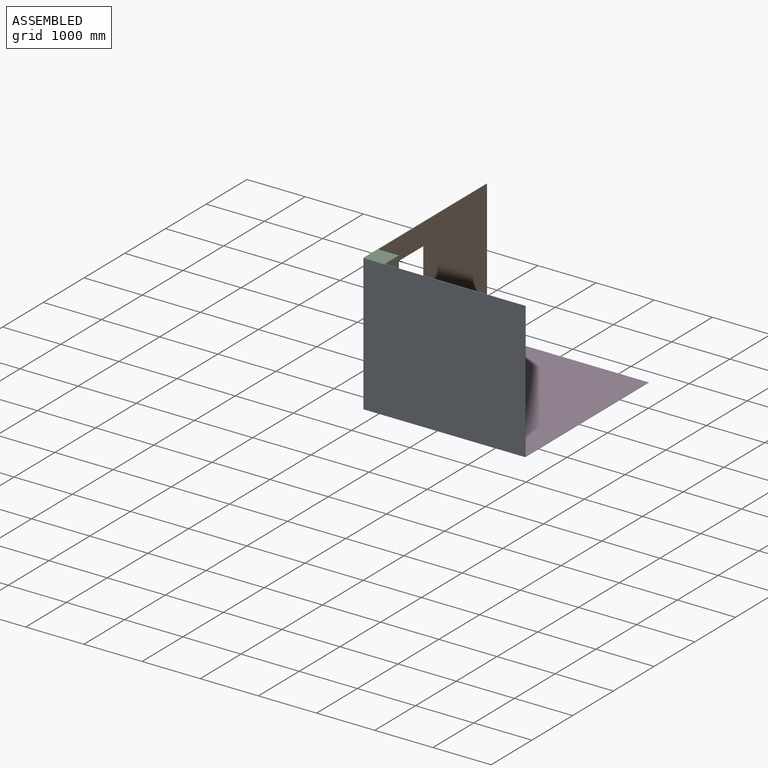
[diagram: assembled view]
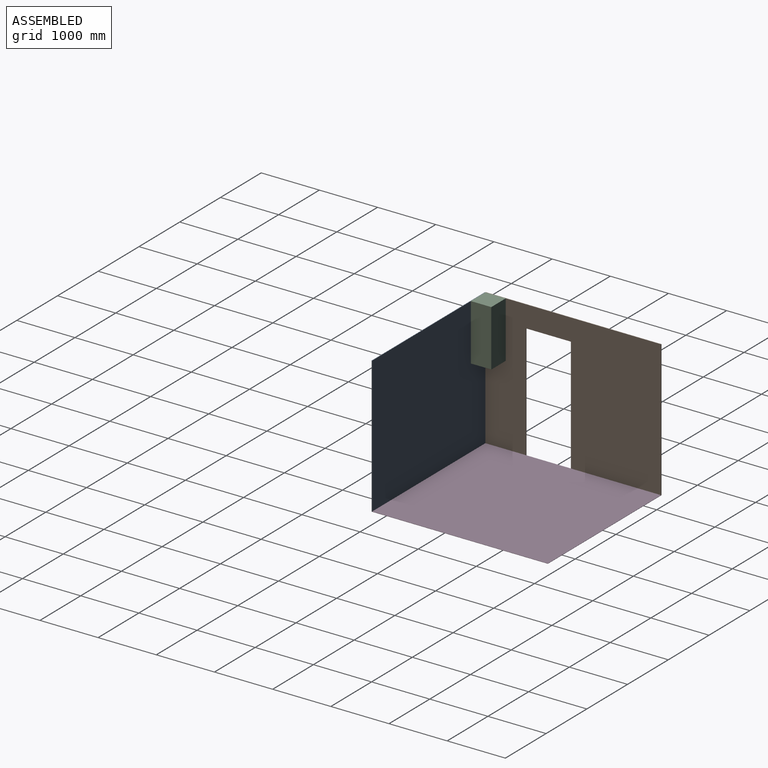
[diagram: assembled view, second angle]
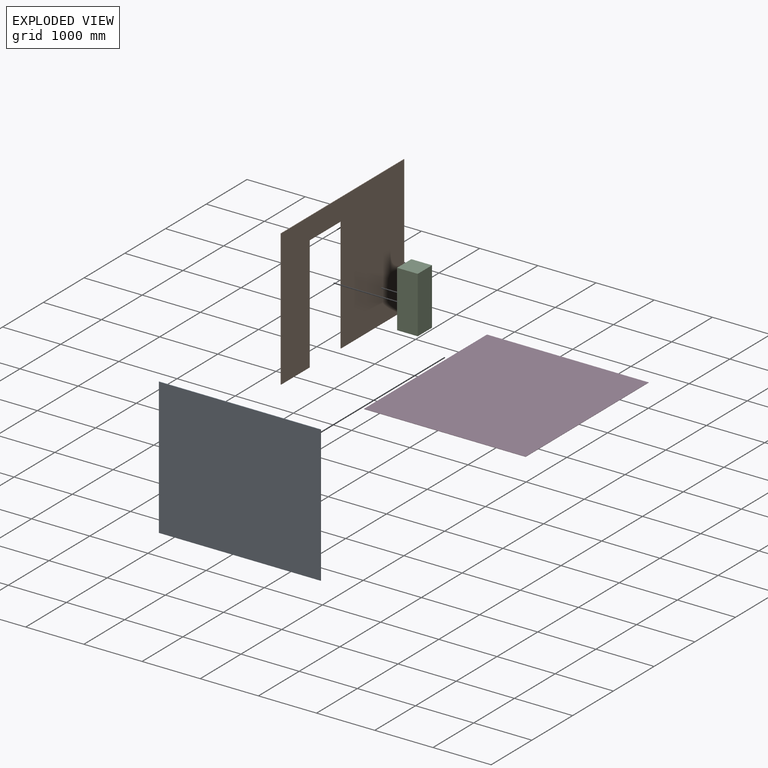
[diagram: exploded view]
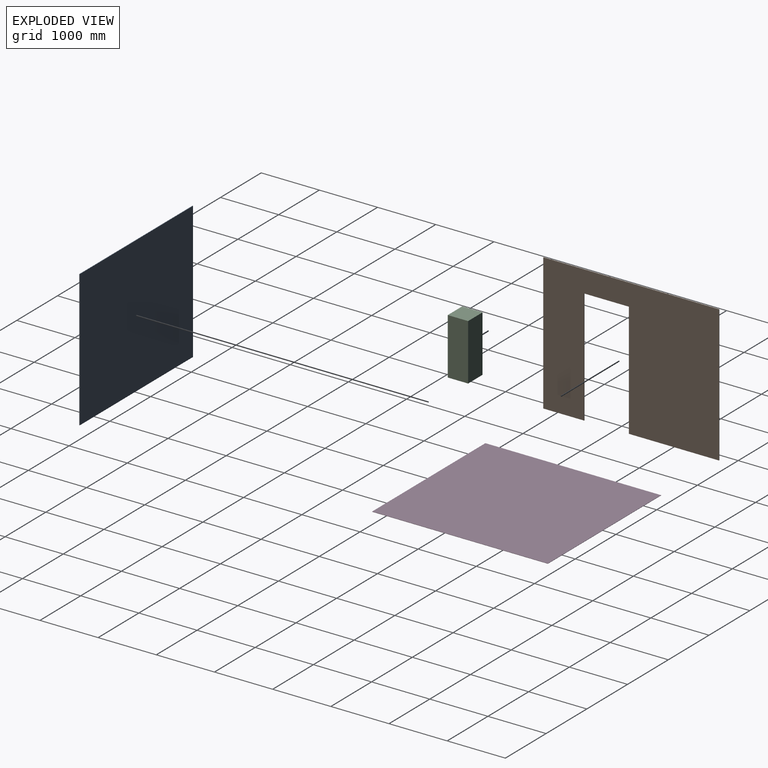
[diagram: exploded view, second angle]
ASSEMBLY  parts=4 mates=9
PART A: 6 faces, bbox 2779x10x2348 mm
  f0: plane 2348x10mm, normal (1,0,0), area 23480mm2, adj f1,f3,f4,f5
  f1: plane 2779x10mm, normal (0,0,1), area 27790mm2, adj f0,f2,f4,f5
  f2: plane 2348x10mm, normal (-1,0,0), area 23480mm2, adj f1,f3,f4,f5
  f3: plane 2779x10mm, normal (0,0,-1), area 27790mm2, adj f0,f2,f4,f5
  f4: plane 2779x2348mm, normal (0,-1,0), area 6525092mm2, adj f0,f1,f2,f3
  f5: plane 2779x2348mm, normal (0,1,0), area 6525092mm2, adj f0,f1,f2,f3
PART B: 10 faces, bbox 3020x10x2348 mm
  f0: plane 2348x10mm, normal (-1,0,0), area 23480mm2, adj f1,f7,f8,f9
  f1: plane 701x10mm, normal (0,0,-1), area 7010mm2, adj f0,f2,f8,f9
  f2: plane 1975x10mm, normal (1,0,0), area 19750mm2, adj f1,f3,f8,f9
  f3: plane 769x10mm, normal (0,0,-1), area 7690mm2, adj f2,f4,f8,f9
  f4: plane 1975x10mm, normal (-1,0,0), area 19750mm2, adj f3,f5,f8,f9
  f5: plane 1550x10mm, normal (0,0,-1), area 15500mm2, adj f4,f6,f8,f9
  f6: plane 2348x10mm, normal (1,0,0), area 23480mm2, adj f5,f7,f8,f9
  f7: plane 3020x10mm, normal (0,0,1), area 30200mm2, adj f0,f6,f8,f9
  f8: plane 3020x2348mm, normal (0,-1,0), area 5572185mm2, adj f0,f1,f2,f3,f4,f5,f6,f7
  f9: plane 3020x2348mm, normal (0,1,0), area 5572185mm2, adj f0,f1,f2,f3,f4,f5,f6,f7
PART C: 6 faces, bbox 355x350x970 mm
  f0: plane 970x355mm, normal (0,1,0), area 344350mm2, adj f1,f3,f4,f5
  f1: plane 970x350mm, normal (-1,0,0), area 339500mm2, adj f0,f2,f4,f5
  f2: plane 970x355mm, normal (0,-1,0), area 344350mm2, adj f1,f3,f4,f5
  f3: plane 970x350mm, normal (1,0,0), area 339500mm2, adj f0,f2,f4,f5
  f4: plane 355x350mm, normal (0,0,-1), area 124250mm2, adj f0,f1,f2,f3
  f5: plane 355x350mm, normal (0,0,1), area 124250mm2, adj f0,f1,f2,f3
PART D: 6 faces, bbox 2779x3020x5 mm
  f0: plane 2779x5mm, normal (0,1,0), area 13895mm2, adj f1,f3,f4,f5
  f1: plane 3020x5mm, normal (-1,0,0), area 15100mm2, adj f0,f2,f4,f5
  f2: plane 2779x5mm, normal (0,-1,0), area 13895mm2, adj f1,f3,f4,f5
  f3: plane 3020x5mm, normal (1,0,0), area 15100mm2, adj f0,f2,f4,f5
  f4: plane 3020x2779mm, normal (0,0,1), area 8392580mm2, adj f0,f1,f2,f3
  f5: plane 3020x2779mm, normal (0,0,-1), area 8392580mm2, adj f0,f1,f2,f3
PLACE A t=(-2493.43,137.22,1573.3)mm
PLACE B rot(axis=(0,0,1),90deg) t=(-3892.93,1647.22,1570.21)mm
PLACE C t=(-2372.93,497.22,1570.21)mm
PLACE D rot(axis=(0,1,0),180deg) t=(-2493.43,1647.22,404.3)mm
MATE planar C.f1 <-> B.f8  axis (-1,0,0) through (-3882.93,137.22,2262.3)mm
MATE planar D.f4 <-> B.f5  axis (0,0,-1) through (-2493.43,1647.22,399.3)mm
MATE planar C.f5 <-> B.f7  axis (0,0,1) through (-3705.43,312.22,2747.3)mm
MATE planar C.f2 <-> B.f0  axis (0,-1,0) through (-3705.43,137.22,2262.3)mm
MATE planar A.f3 <-> D.f4  axis (0,0,-1) through (-2493.43,132.22,399.3)mm
MATE planar B.f0 <-> D.f2  axis (0,-1,0) through (-3887.93,137.22,1573.3)mm
MATE planar A.f5 <-> D.f2  axis (0,1,0) through (-2493.43,137.22,1573.3)mm
MATE planar A.f2 <-> B.f8  axis (-1,0,0) through (-3882.93,132.22,2747.3)mm
MATE planar D.f3 <-> B.f8  axis (-1,0,0) through (-3882.93,1647.22,401.8)mm
